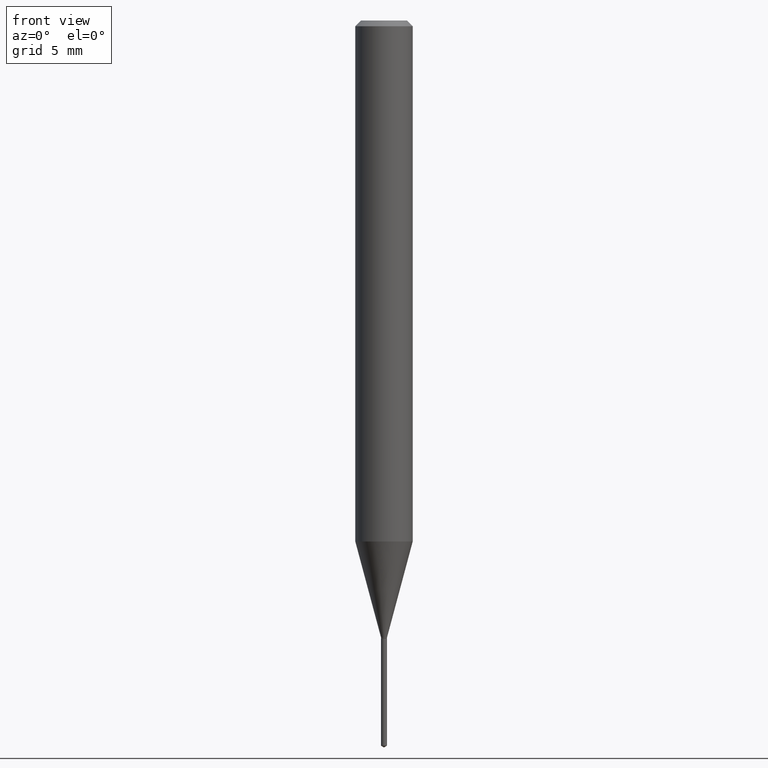
[diagram: clean part render]
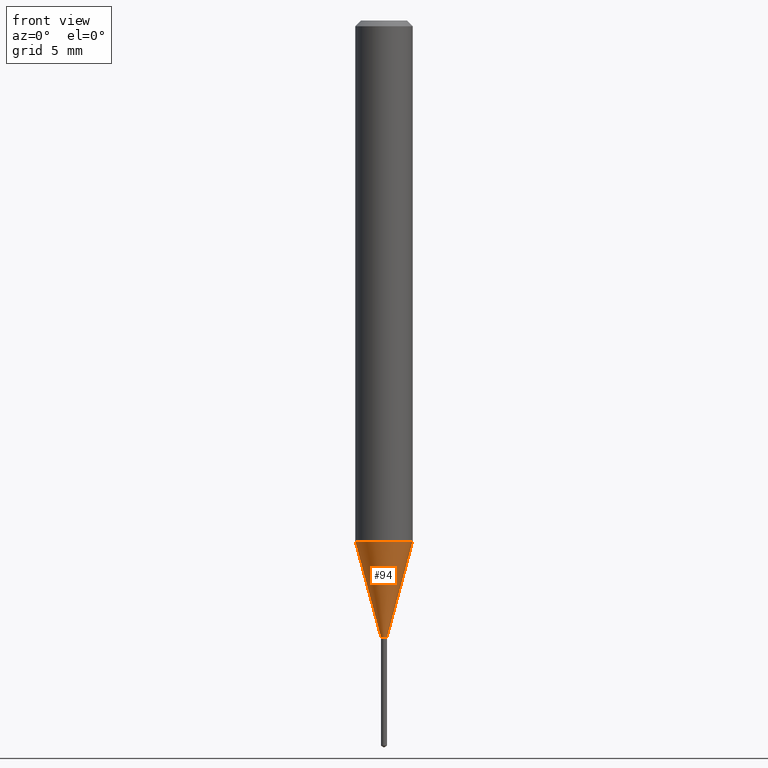
[diagram: same view with one face highlighted and labeled with its STEP entity id]
A machine part, front view. The second image highlights one B-rep face of the part: STEP entity #94.
In plain terms, the highlighted conical surface has half-angle 15 deg.
Its self-contained STEP definition (entity closure, byte-faithful):
#4 = AXIS2_PLACEMENT_3D ( 'NONE', #191, #333, #290 ) ;
#29 = AXIS2_PLACEMENT_3D ( 'NONE', #264, #345, #223 ) ;
#47 = ORIENTED_EDGE ( 'NONE', *, *, #338, .T. ) ;
#71 = DIRECTION ( 'NONE',  ( 1.000000000000000000, -6.982962677686284854E-15, 0.000000000000000000 ) ) ;
#81 = VERTEX_POINT ( 'NONE', #143 ) ;
#90 = ORIENTED_EDGE ( 'NONE', *, *, #464, .T. ) ;
#94 = ADVANCED_FACE ( 'NONE', ( #445 ), #317, .T. ) ;
#95 = DIRECTION ( 'NONE',  ( 0.2588190451025213501, 1.565188264969621968E-15, 0.9659258262890682012 ) ) ;
#107 = DIRECTION ( 'NONE',  ( -2.445468806185136597E-29, 3.491481338843145583E-15, 1.000000000000000000 ) ) ;
#113 = VERTEX_POINT ( 'NONE', #243 ) ;
#143 = CARTESIAN_POINT ( 'NONE',  ( -0.05905000000000013710, -3.324297741255297411E-15, -1.072287909739227940 ) ) ;
#180 = CARTESIAN_POINT ( 'NONE',  ( -0.006100000000000000387, -4.392758508185793747E-15, -1.269900000000000029 ) ) ;
#191 = CARTESIAN_POINT ( 'NONE',  ( 3.105500836974505052E-29, -4.433832152196910680E-15, -1.269900000000000029 ) ) ;
#200 = VERTEX_POINT ( 'NONE', #488 ) ;
#211 = CIRCLE ( 'NONE', #29, 0.05905000000000013710 ) ;
#212 = CARTESIAN_POINT ( 'NONE',  ( 3.105500836974505052E-29, -4.433832152196910680E-15, -1.269900000000000029 ) ) ;
#223 = DIRECTION ( 'NONE',  ( 1.000000000000000000, -6.982962677686264344E-15, 0.000000000000000000 ) ) ;
#243 = CARTESIAN_POINT ( 'NONE',  ( 0.05905000000000013710, -4.156217172839012613E-15, -1.072287909739227940 ) ) ;
#264 = CARTESIAN_POINT ( 'NONE',  ( 2.622246634516745589E-29, -3.743873226721637693E-15, -1.072287909739227940 ) ) ;
#271 = CARTESIAN_POINT ( 'NONE',  ( -0.006100000000000000387, -4.390489045315544609E-15, -1.269900000000000029 ) ) ;
#280 = CIRCLE ( 'NONE', #4, 0.006100000000000000387 ) ;
#290 = DIRECTION ( 'NONE',  ( 1.000000000000000000, -6.982962677686284854E-15, 0.000000000000000000 ) ) ;
#299 = EDGE_CURVE ( 'NONE', #81, #113, #211, .T. ) ;
#315 = CARTESIAN_POINT ( 'NONE',  ( 0.006100000000000000387, -4.476428224530796945E-15, -1.269900000000000029 ) ) ;
#317 = CONICAL_SURFACE ( 'NONE', #442, 0.006100000000000000387, 0.2617993877991500740 ) ;
#333 = DIRECTION ( 'NONE',  ( -2.445468806185136597E-29, 3.491481338843145583E-15, 1.000000000000000000 ) ) ;
#338 = EDGE_CURVE ( 'NONE', #339, #200, #280, .T. ) ;
#339 = VERTEX_POINT ( 'NONE', #180 ) ;
#345 = DIRECTION ( 'NONE',  ( -2.445468806185136597E-29, 3.491481338843145583E-15, 1.000000000000000000 ) ) ;
#349 = EDGE_LOOP ( 'NONE', ( #489, #47, #90, #395 ) ) ;
#374 = EDGE_CURVE ( 'NONE', #339, #81, #416, .T. ) ;
#385 = DIRECTION ( 'NONE',  ( -0.2588190451025213501, 5.211531920934551042E-15, 0.9659258262890682012 ) ) ;
#390 = VECTOR ( 'NONE', #95, 39.37007874015747433 ) ;
#395 = ORIENTED_EDGE ( 'NONE', *, *, #299, .F. ) ;
#416 = LINE ( 'NONE', #271, #472 ) ;
#442 = AXIS2_PLACEMENT_3D ( 'NONE', #212, #107, #71 ) ;
#445 = FACE_OUTER_BOUND ( 'NONE', #349, .T. ) ;
#463 = LINE ( 'NONE', #315, #390 ) ;
#464 = EDGE_CURVE ( 'NONE', #200, #113, #463, .T. ) ;
#472 = VECTOR ( 'NONE', #385, 39.37007874015747433 ) ;
#488 = CARTESIAN_POINT ( 'NONE',  ( 0.006100000000000000387, -4.476428224530796945E-15, -1.269900000000000029 ) ) ;
#489 = ORIENTED_EDGE ( 'NONE', *, *, #374, .F. ) ;